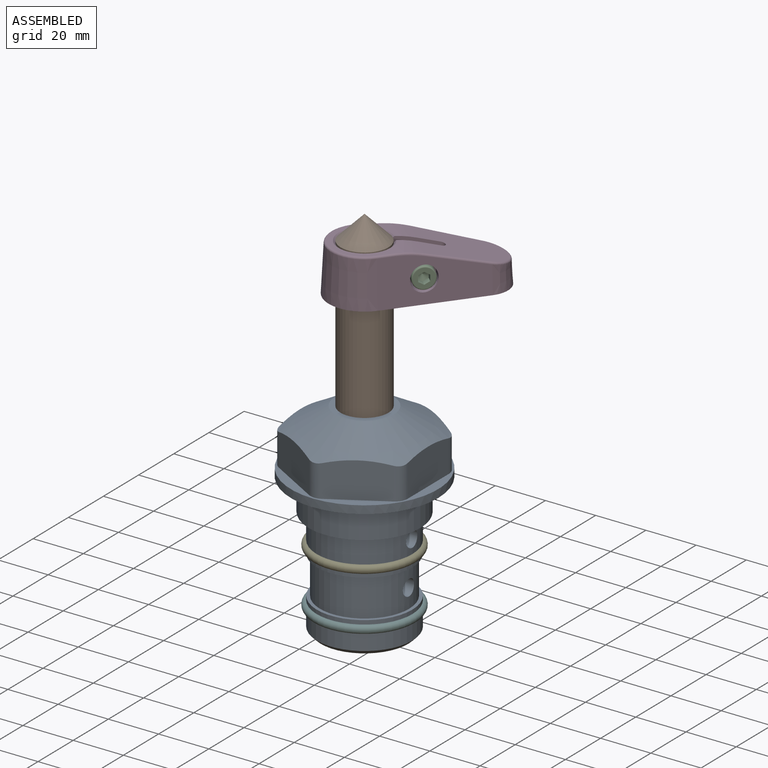
[diagram: assembled view]
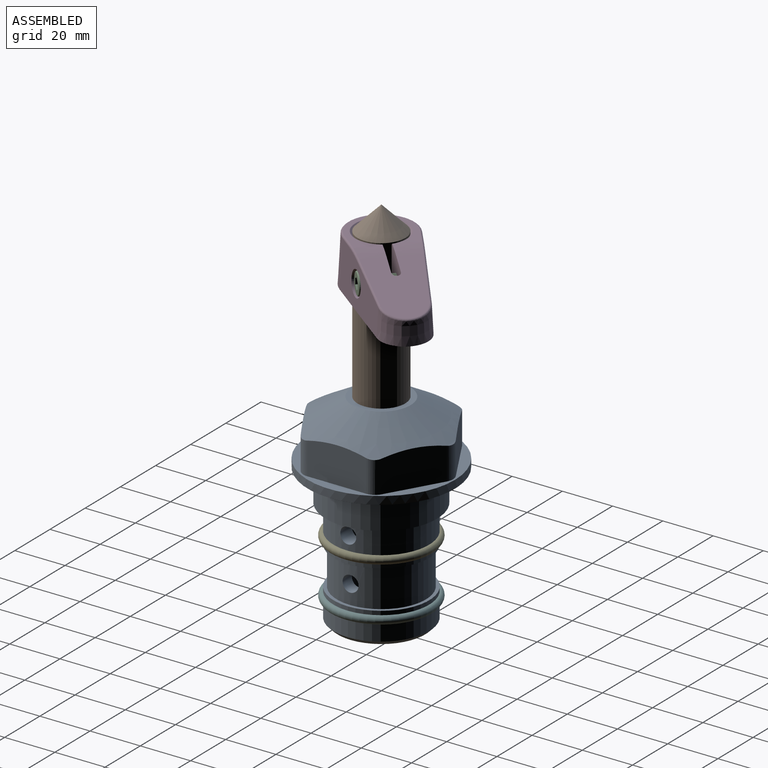
[diagram: assembled view, second angle]
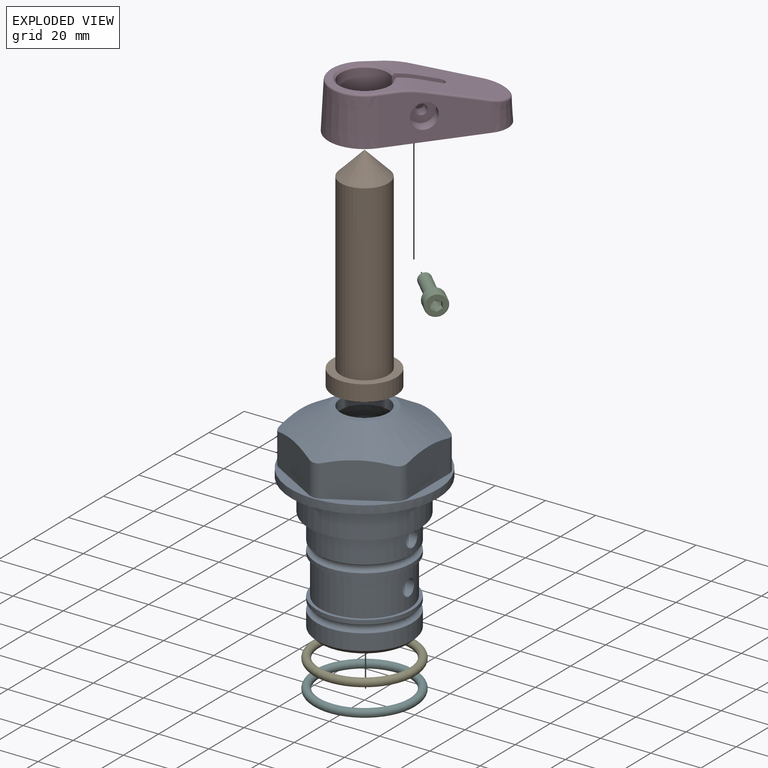
[diagram: exploded view]
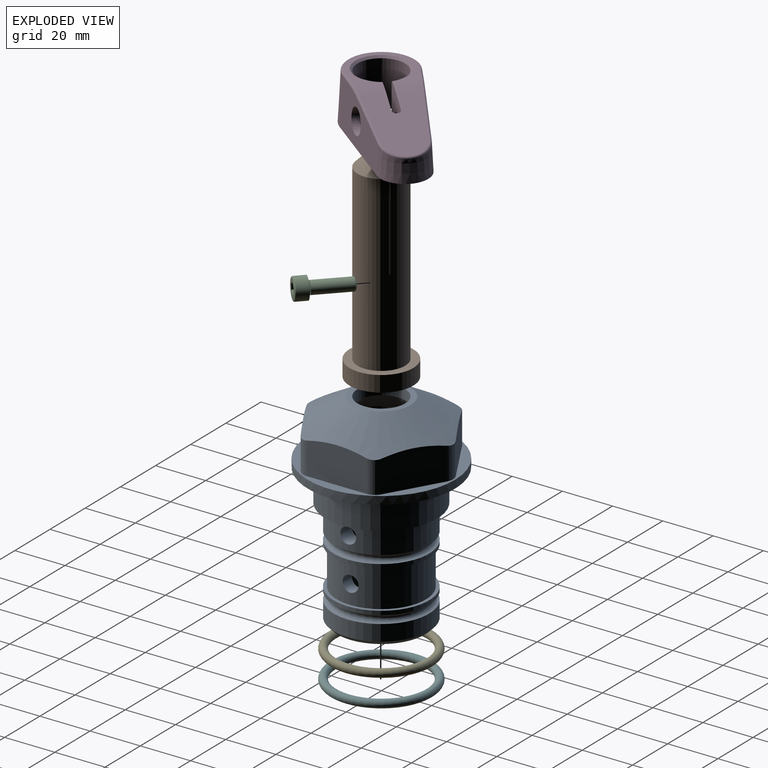
[diagram: exploded view, second angle]
ASSEMBLY  parts=6 mates=5
PART A: 36 faces, bbox 58.7x58.7x81 mm
  f0: cylinder r=17.78mm len=35.56mm, axis (0,0,1), area 1670.8mm2, adj f23,f24,f31
  f1: cylinder r=19.05mm len=38.1mm, axis (0,0,1), area 1191.9mm2, adj f26,f27,f30
  f2: plane 58.66x58.66mm, normal (0,0,-1), area 1150.6mm2, adj f3,f28
  f3: cylinder r=29.33mm len=58.66mm, axis (0,0,-1), area 585.1mm2, adj f2,f4
  f4: plane 58.66x58.66mm, normal (0,0,1), area 475.9mm2, adj f3,f5,f6,f7,f8,f9,f10,f11
  f5: plane 20.32x14.34mm, normal (-0.5,0.87,0), area 324.4mm2, adj f4,f15,f16,f17
  f6: plane 20.32x14.34mm, normal (0.5,0.87,0), area 324.4mm2, adj f4,f14,f15,f17
  f7: plane 23.48x14.34mm, normal (1,0,0), area 324.4mm2, adj f4,f13,f14,f17
  f8: plane 20.32x14.34mm, normal (0.5,-0.87,0), area 324.4mm2, adj f4,f12,f13,f17
  f9: plane 20.32x14.34mm, normal (-0.5,-0.87,0), area 324.4mm2, adj f4,f11,f12,f17
  f10: plane 23.48x14.34mm, normal (-1,0,0), area 324.4mm2, adj f4,f11,f16,f17
  f11: cylinder r=5.08mm len=12.85mm, axis (0,0,-1), area 67.2mm2, adj f4,f9,f10,f17
  f12: cylinder r=5.08mm len=12.85mm, axis (0,0,-1), area 67.2mm2, adj f4,f8,f9,f17
  f13: cylinder r=5.08mm len=12.85mm, axis (0,0,-1), area 67.2mm2, adj f4,f7,f8,f17
  f14: cylinder r=5.08mm len=12.85mm, axis (0,0,-1), area 67.2mm2, adj f4,f6,f7,f17
  f15: cylinder r=5.08mm len=12.85mm, axis (0,0,-1), area 67.2mm2, adj f4,f5,f6,f17
  f16: cylinder r=5.08mm len=12.85mm, axis (0,0,-1), area 67.2mm2, adj f4,f5,f10,f17
  f17: cone r=11.73mm half-angle=60deg, axis (0,0,-1), area 2071.8mm2, adj f5,f6,f7,f8,f9,f10,f11,f12
  f18: plane 23.46x23.46mm, normal (0,0,1), area 147.4mm2, adj f17,f35
  f19: plane 34.93x34.93mm, normal (0,0,-1), area 958mm2, adj f29
  f20: cylinder r=19.05mm len=38.1mm, axis (0,0,1), area 760.1mm2, adj f21,f29
  f21: torus R=19.05mm, axis (0,0,1), area 565.3mm2, adj f20,f22
  f22: cylinder r=19.05mm len=38.1mm, axis (0,0,1), area 190mm2, adj f21,f23
  f23: plane 38.1x38.1mm, normal (0,0,1), area 146.9mm2, adj f0,f22
  f24: plane 38.1x38.1mm, normal (0,0,-1), area 146.9mm2, adj f0,f25
  f25: cylinder r=19.05mm len=38.1mm, axis (0,0,1), area 190mm2, adj f24,f26
  f26: torus R=19.05mm, axis (0,0,1), area 565.3mm2, adj f1,f25
  f27: plane 44.45x44.45mm, normal (0,0,-1), area 411.7mm2, adj f1,f28
  f28: cylinder r=22.23mm len=44.45mm, axis (0,0,1), area 1773.5mm2, adj f2,f27
  f29: cone r=19.05mm half-angle=45deg, axis (0,0,1), area 257.5mm2, adj f19,f20
  f30: cylinder r=3.17mm len=6.75mm, axis (-1,0,0), area 128mm2, adj f1,f33
  f31: cylinder r=3.17mm len=6.35mm, axis (-1,0,0), area 102.5mm2, adj f0,f33
  f32: plane 25.4x25.4mm, normal (0,0,1), area 506.7mm2, adj f33
  f33: cylinder r=12.7mm len=66.42mm, axis (0,0,-1), area 5236.2mm2, adj f30,f31,f32,f34
  f34: cone r=9.53mm half-angle=30deg, axis (0,0,-1), area 443.4mm2, adj f33,f35
  f35: cylinder r=9.53mm len=19.05mm, axis (0,0,-1), area 240.9mm2, adj f18,f34
PART B: 5 faces, bbox 25.4x25.4x84.9 mm
  f0: plane 25.4x25.4mm, normal (0,0,-1), area 506.7mm2, adj f1
  f1: cylinder r=12.7mm len=25.4mm, axis (0,0,1), area 506.7mm2, adj f0,f2
  f2: plane 25.4x25.4mm, normal (0,0,1), area 221.7mm2, adj f1,f3
  f3: cylinder r=9.53mm len=69.06mm, axis (0,0,1), area 4132.8mm2, adj f2,f4
  f4: cone r=8.73mm half-angle=45deg, axis (0,0,-1), area 403.1mm2, adj f3
PART C: 18 faces, bbox 9.2x9.2x21 mm
  f0: cone r=2.28mm half-angle=45deg, axis (0,0,1), area 8.8mm2, adj f1,f16
  f1: cylinder r=2.5mm len=14.83mm, axis (0,0,-1), area 233mm2, adj f0,f15
  f2: cone r=2.28mm half-angle=45deg, axis (0,0,1), area 8.8mm2, adj f3,f15
  f3: cylinder r=2.5mm len=5mm, axis (0,0,-1), area 0.8mm2, adj f2,f4
  f4: torus R=2.75mm, axis (0,0,-1), area 6.4mm2, adj f3,f14
  f5: cylinder r=4.25mm len=8.5mm, axis (0,0,-1), area 122.2mm2, adj f6,f14
  f6: torus R=3.82mm, axis (0,0,-1), area 17.2mm2, adj f5,f17
  f7: cone r=1.15mm half-angle=60deg, axis (0,0,1), area 16mm2, adj f8,f9,f10,f11,f12,f13
  f8: plane 2.76x2mm, normal (0.87,0.5,0), area 6mm2, adj f7,f9,f13,f17
  f9: plane 2.76x2.31mm, normal (0,1,0), area 6mm2, adj f7,f8,f10,f17
  f10: plane 2.76x2mm, normal (-0.87,0.5,0), area 6mm2, adj f7,f9,f11,f17
  f11: plane 2.76x2mm, normal (-0.87,-0.5,0), area 6mm2, adj f7,f10,f12,f17
  f12: plane 2.71x2.31mm, normal (0,-1,0), area 6mm2, adj f7,f11,f13,f17
  f13: plane 2.76x2mm, normal (0.87,-0.5,0), area 6mm2, adj f7,f8,f12,f17
  f14: plane 8.5x8.5mm, normal (0,0,-1), area 33mm2, adj f4,f5
  f15: plane 5x5mm, normal (0,0,1), area 6.2mm2, adj f1,f2
  f16: plane 4.13x4.13mm, normal (0,0,-1), area 13.4mm2, adj f0
  f17: plane 7.65x7.65mm, normal (0,0,1), area 32.1mm2, adj f6,f8,f9,f10,f11,f12,f13
PART D: 34 faces, bbox 31x65.7x21.2 mm
  f0: plane 63.5x28.58mm, normal (0,0,-1), area 912.2mm2, adj f1,f2,f3,f4,f5,f6,f7,f16
  f1: plane 18.97x16.01mm, normal (1,0,0), area 268.4mm2, adj f0,f2,f8,f10,f12,f15,f16,f28
  f2: cylinder r=1.59mm len=15.65mm, axis (0,0,-1), area 78mm2, adj f0,f1,f3,f10
  f3: plane 18.97x16.01mm, normal (-1,0,0), area 268.4mm2, adj f0,f2,f8,f10,f11,f13,f16,f25
  f4: cone r=9.53mm half-angle=3deg, axis (0,0,-1), area 289.3mm2, adj f0,f5,f6,f24
  f5: plane 39.48x18.54mm, normal (-0.99,0.12,0.05), area 601.3mm2, adj f0,f4,f7,f19,f21,f23,f28
  f6: plane 41.34x20.41mm, normal (0.99,0.12,0.05), area 539.3mm2, adj f0,f4,f7,f18,f20,f22,f27
  f7: cone r=14.29mm half-angle=3deg, axis (0,0,-1), area 855.7mm2, adj f0,f5,f6,f17
  f8: cylinder r=9.53mm len=19.05mm, axis (0,0,-1), area 989mm2, adj f1,f3,f13,f14,f15,f16
  f9: plane 25.07x20.32mm, normal (0,0,1), area 125mm2, adj f11,f12,f14,f17,f18,f19
  f10: plane 31.56x22.07mm, normal (0,0.26,0.97), area 517.2mm2, adj f1,f2,f3,f11,f12,f22,f23,f24
  f11: cylinder r=37.35mm len=10.1mm, axis (1,0,0), area 87.1mm2, adj f3,f9,f10,f13,f20
  f12: cylinder r=37.35mm len=10.1mm, axis (1,0,0), area 87.1mm2, adj f1,f9,f10,f15,f21
  f13: bspline ~5.31x3.07mm, area 6.3mm2, adj f3,f8,f11,f14
  f14: cone r=9.53mm half-angle=45deg, axis (0,0,1), area 54mm2, adj f8,f9,f13,f15
  f15: bspline ~5.31x3.07mm, area 6.3mm2, adj f1,f8,f12,f14
  f16: cone r=10.32mm half-angle=45deg, axis (0,0,-1), area 66.4mm2, adj f0,f1,f3,f8
  f17: torus R=12.54mm, axis (0,0,1), area 53.1mm2, adj f7,f9,f18,f19
  f18: cylinder r=0.79mm len=6.37mm, axis (0.12,-0.99,0), area 7.6mm2, adj f6,f9,f17,f20
  f19: cylinder r=0.79mm len=6.37mm, axis (-0.12,-0.99,0), area 7.6mm2, adj f5,f9,f17,f21
  f20: bspline ~9.68x2mm, area 11.6mm2, adj f6,f11,f18,f22
  f21: bspline ~9.68x2mm, area 11.6mm2, adj f5,f12,f19,f23
  f22: cylinder r=0.79mm len=23.55mm, axis (0.1,-0.96,0.26), area 28.8mm2, adj f6,f10,f20,f24
  f23: cylinder r=0.79mm len=23.55mm, axis (-0.1,-0.96,0.26), area 28.8mm2, adj f5,f10,f21,f24
  f24: bspline ~17.79x7.98mm, area 27.3mm2, adj f4,f10,f22,f23
  f25: cylinder r=2.05mm len=5.09mm, axis (1,0,0), area 65.5mm2, adj f3,f26
  f26: plane 9.75x9.75mm, normal (1,0,0), area 61.5mm2, adj f25,f27
  f27: cylinder r=4.88mm len=9.75mm, axis (1,0,0), area 170.2mm2, adj f6,f26
  f28: cylinder r=2.05mm len=10.44mm, axis (1,0,0), area 131.2mm2, adj f1,f5
  f29: plane 12.54x10.15mm, normal (0.99,-0.12,-0.09), area 85.9mm2, adj f0,f30,f31,f33
  f30: cylinder r=6.67mm len=11.62mm, axis (0,0,-1), area 114.3mm2, adj f0,f29,f31,f32
  f31: plane 15.55x11.57mm, normal (0,-0.26,-0.97), area 98.5mm2, adj f29,f30,f32,f33
  f32: plane 12.54x10.15mm, normal (-0.99,-0.12,-0.09), area 85.9mm2, adj f0,f30,f31,f33
  f33: cone r=4.45mm half-angle=5deg, axis (0,0,-1), area 78mm2, adj f0,f29,f31,f32
PART E: 1 faces, bbox 44.7x44.7x3.2 mm
  f0: torus R=19.05mm, axis (0,0,1), area 1193.9mm2
PART F: same geometry as E
PLACE A at identity fixed
PLACE B rot(axis=(0,0,1),135.9deg) t=(0,0,22.23)mm
PLACE C rot(axis=(0.68,-0.28,0.68),149.2deg) t=(17.03,7.99,75.01)mm
PLACE D rot(axis=(0,0,-1),44.1deg) t=(0,0,65.88)mm
PLACE E at identity
PLACE F t=(0,0,-21.59)mm
MATE fastened C.f7 <-> D.f25  axis (-0.72,0.7,0) through (17.03,7.99,75.01)mm
MATE fastened B.f1 <-> D.f7  axis (0,0,1) through (0,0,84.93)mm
MATE fastened F.f0 <-> A.f0  axis (0,0,1) through (0,0,-46.1)mm
MATE cylindrical A.f0 <-> B.f1  axis (0,0,-1) through (0,0,15.88)mm
MATE fastened E.f0 <-> A.f0  axis (0,0,1) through (0,0,-24.51)mm
